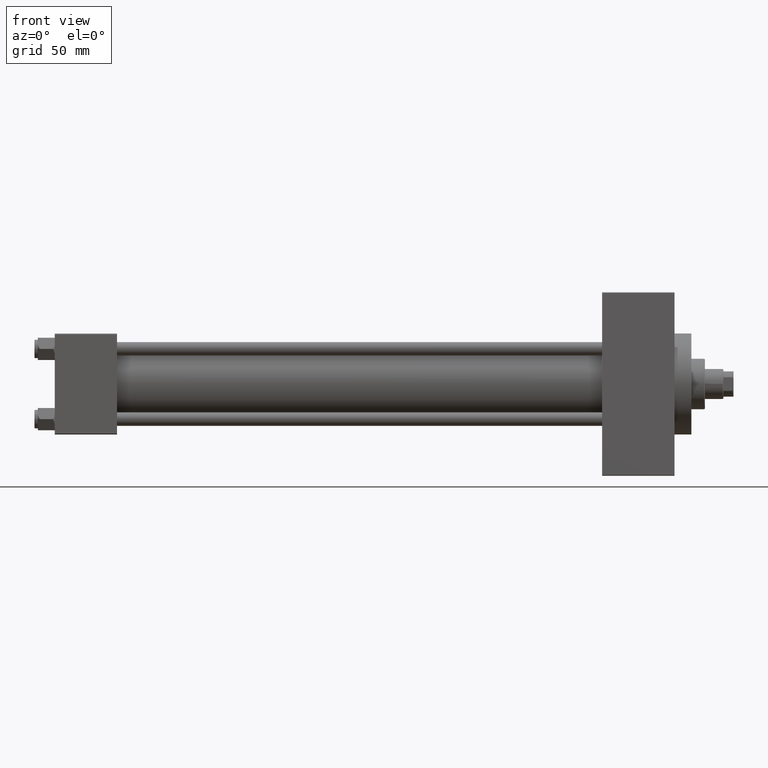
[diagram: clean part render]
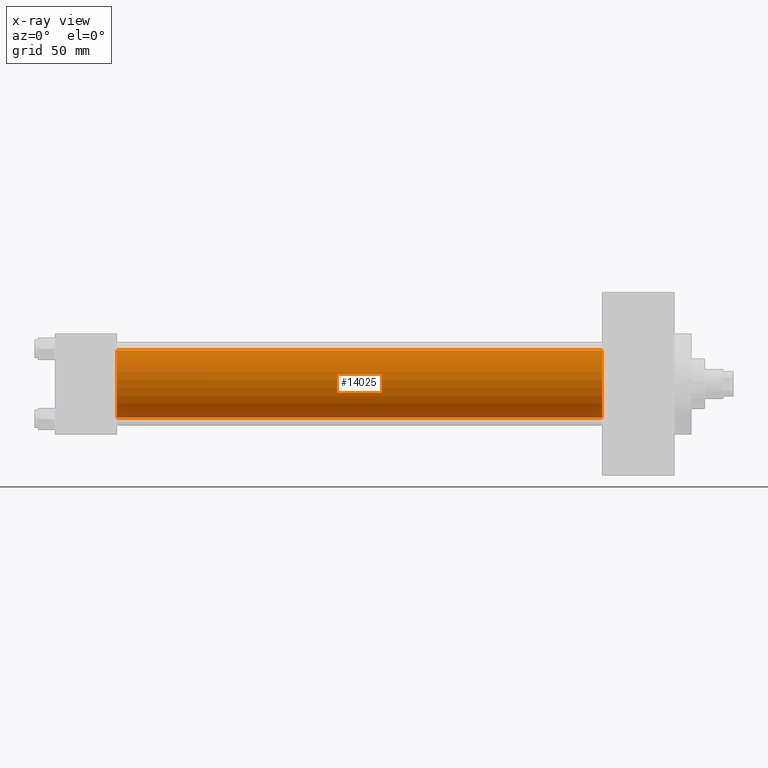
[diagram: x-ray — body ghosted, one internal face saturated and labeled with its STEP entity id]
A machine part, front view, then the same camera in x-ray: the body is ghosted and one INTERNAL B-rep face — a face not visible from any outside direction — is saturated and labeled: STEP entity #14025.
In plain terms, the highlighted cylindrical surface (edge-blend (fillet) strip) has radius 20 mm, axis along (-1, -0, -0).
Its self-contained STEP definition (entity closure, byte-faithful):
#3342 = EDGE_CURVE ( 'NONE', #33560, #42497, #25888, .T. ) ;
#4427 = VECTOR ( 'NONE', #44975, 1000.000000000000000 ) ;
#4508 = VERTEX_POINT ( 'NONE', #14362 ) ;
#8239 = AXIS2_PLACEMENT_3D ( 'NONE', #23356, #30117, #41569 ) ;
#9701 = AXIS2_PLACEMENT_3D ( 'NONE', #33786, #41258, #30520 ) ;
#10733 = AXIS2_PLACEMENT_3D ( 'NONE', #47806, #29094, #17137 ) ;
#14025 = ADVANCED_FACE ( 'NONE', ( #37526 ), #18322, .F. ) ;
#14362 = CARTESIAN_POINT ( 'NONE',  ( 324.9999999999999432, -1.527916156705042519E-16, -20.00000000000000000 ) ) ;
#14664 = CARTESIAN_POINT ( 'NONE',  ( 324.9999999999999432, -2.602085213965210642E-15, 20.00000000000000000 ) ) ;
#17137 = DIRECTION ( 'NONE',  ( 0.000000000000000000, 0.000000000000000000, -1.000000000000000000 ) ) ;
#17406 = ORIENTED_EDGE ( 'NONE', *, *, #3342, .F. ) ;
#18322 = CYLINDRICAL_SURFACE ( 'NONE', #9701, 20.00000000000000000 ) ;
#19582 = ORIENTED_EDGE ( 'NONE', *, *, #33133, .F. ) ;
#23356 = CARTESIAN_POINT ( 'NONE',  ( 37.00000000000000000, -2.602085213965210642E-15, 0.000000000000000000 ) ) ;
#25326 = EDGE_CURVE ( 'NONE', #33560, #4508, #46561, .T. ) ;
#25888 = LINE ( 'NONE', #14664, #48856 ) ;
#27360 = EDGE_CURVE ( 'NONE', #4508, #40214, #45224, .T. ) ;
#28964 = CARTESIAN_POINT ( 'NONE',  ( 37.00000000000000000, -2.602085213965210642E-15, 20.00000000000000000 ) ) ;
#29094 = DIRECTION ( 'NONE',  ( 1.000000000000000000, 0.000000000000000000, 0.000000000000000000 ) ) ;
#29884 = DIRECTION ( 'NONE',  ( -1.000000000000000000, -0.000000000000000000, -0.000000000000000000 ) ) ;
#30117 = DIRECTION ( 'NONE',  ( 1.000000000000000000, 0.000000000000000000, 0.000000000000000000 ) ) ;
#30520 = DIRECTION ( 'NONE',  ( 0.000000000000000000, 0.000000000000000000, 1.000000000000000000 ) ) ;
#33133 = EDGE_CURVE ( 'NONE', #42497, #40214, #48845, .T. ) ;
#33560 = VERTEX_POINT ( 'NONE', #48634 ) ;
#33786 = CARTESIAN_POINT ( 'NONE',  ( 324.9999999999999432, -2.602085213965210642E-15, 0.000000000000000000 ) ) ;
#35643 = ORIENTED_EDGE ( 'NONE', *, *, #27360, .T. ) ;
#36442 = ORIENTED_EDGE ( 'NONE', *, *, #25326, .T. ) ;
#37526 = FACE_OUTER_BOUND ( 'NONE', #40779, .T. ) ;
#37739 = CARTESIAN_POINT ( 'NONE',  ( 324.9999999999999432, -1.527916156705042519E-16, -20.00000000000000000 ) ) ;
#38430 = CARTESIAN_POINT ( 'NONE',  ( 37.00000000000000000, -1.527916156705042519E-16, -20.00000000000000000 ) ) ;
#40214 = VERTEX_POINT ( 'NONE', #38430 ) ;
#40779 = EDGE_LOOP ( 'NONE', ( #36442, #35643, #19582, #17406 ) ) ;
#41258 = DIRECTION ( 'NONE',  ( -1.000000000000000000, -0.000000000000000000, -0.000000000000000000 ) ) ;
#41569 = DIRECTION ( 'NONE',  ( 0.000000000000000000, 0.000000000000000000, -1.000000000000000000 ) ) ;
#42497 = VERTEX_POINT ( 'NONE', #28964 ) ;
#44975 = DIRECTION ( 'NONE',  ( -1.000000000000000000, -0.000000000000000000, -0.000000000000000000 ) ) ;
#45224 = LINE ( 'NONE', #37739, #4427 ) ;
#46561 = CIRCLE ( 'NONE', #10733, 20.00000000000000000 ) ;
#47806 = CARTESIAN_POINT ( 'NONE',  ( 324.9999999999999432, -2.602085213965210642E-15, 0.000000000000000000 ) ) ;
#48634 = CARTESIAN_POINT ( 'NONE',  ( 324.9999999999999432, -2.602085213965210642E-15, 20.00000000000000000 ) ) ;
#48845 = CIRCLE ( 'NONE', #8239, 20.00000000000000000 ) ;
#48856 = VECTOR ( 'NONE', #29884, 1000.000000000000000 ) ;